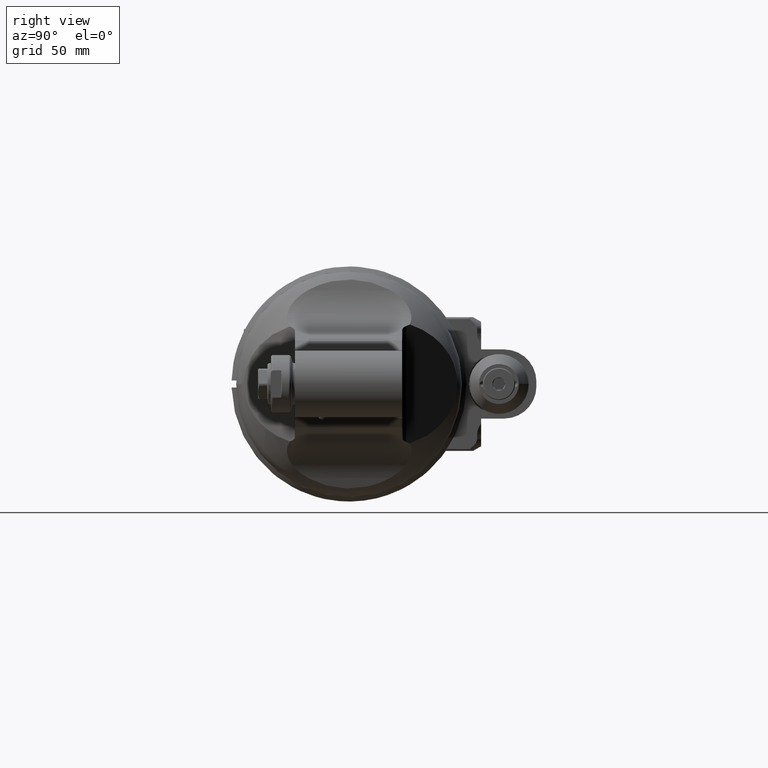
[diagram: clean part render]
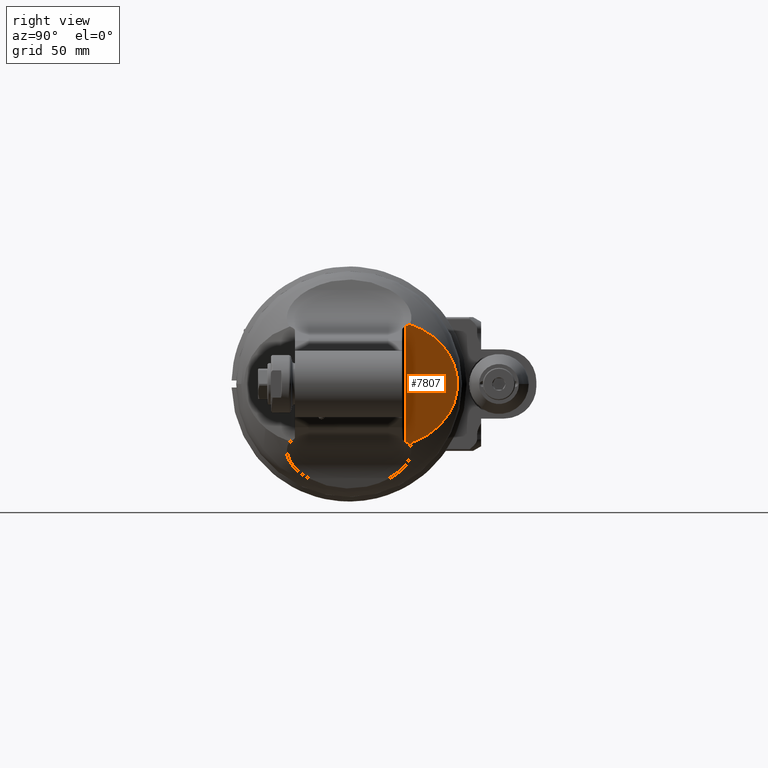
[diagram: same view with one face highlighted and labeled with its STEP entity id]
A machine part, right view. The second image highlights one B-rep face of the part: STEP entity #7807.
In plain terms, the highlighted planar face has unit normal (-0.8192, -0.5736, 0).
Its self-contained STEP definition (entity closure, byte-faithful):
#274=ELLIPSE('',#8353,3.10900759785883,1.83777729492474);
#275=ELLIPSE('',#8377,3.10900758758026,1.83777727992618);
#276=ELLIPSE('',#8379,1.51625797424774,1.08251624101512);
#277=ELLIPSE('',#8380,1.51625797424774,1.08251624101512);
#291=B_SPLINE_CURVE_WITH_KNOTS('',3,(#11824,#11825,#11826,#11827,#11828,
#11829,#11830,#11831,#11832,#11833),.UNSPECIFIED.,.F.,.F.,(4,2,2,2,4),(-2.83909399640529,
-2.74950468456945,-2.43831440791192,-2.1271241312544,-2.03753481942691),
 .UNSPECIFIED.);
#1018=FACE_OUTER_BOUND('',#1508,.T.);
#1508=EDGE_LOOP('',(#5312,#5313,#5314,#5315,#5316,#5317));
#2082=LINE('',#11646,#2654);
#2654=VECTOR('',#9281,1.97803134760669);
#3233=VERTEX_POINT('',#11636);
#3234=VERTEX_POINT('',#11645);
#3236=VERTEX_POINT('',#11658);
#3266=VERTEX_POINT('',#11801);
#3267=VERTEX_POINT('',#11820);
#3268=VERTEX_POINT('',#11822);
#4029=EDGE_CURVE('',#3233,#3234,#2082,.T.);
#4032=EDGE_CURVE('',#3234,#3236,#274,.T.);
#4075=EDGE_CURVE('',#3266,#3233,#275,.T.);
#4076=EDGE_CURVE('',#3267,#3236,#276,.T.);
#4077=EDGE_CURVE('',#3266,#3268,#277,.T.);
#4078=EDGE_CURVE('',#3267,#3268,#291,.F.);
#5312=ORIENTED_EDGE('',*,*,#4076,.T.);
#5313=ORIENTED_EDGE('',*,*,#4032,.F.);
#5314=ORIENTED_EDGE('',*,*,#4029,.F.);
#5315=ORIENTED_EDGE('',*,*,#4075,.F.);
#5316=ORIENTED_EDGE('',*,*,#4077,.T.);
#5317=ORIENTED_EDGE('',*,*,#4078,.F.);
#7576=PLANE('',#8378);
#7807=ADVANCED_FACE('',(#1018),#7576,.F.);
#8353=AXIS2_PLACEMENT_3D('',#11659,#9285,#9286);
#8377=AXIS2_PLACEMENT_3D('',#11818,#9358,#9359);
#8378=AXIS2_PLACEMENT_3D('',#11819,#9360,#9361);
#8379=AXIS2_PLACEMENT_3D('',#11821,#9362,#9363);
#8380=AXIS2_PLACEMENT_3D('',#11823,#9364,#9365);
#9281=DIRECTION('',(-3.974016236092E-14,5.656962613655E-14,1.));
#9285=DIRECTION('center_axis',(0.81918684404937,0.573526708363153,0.000171261674334055));
#9286=DIRECTION('ref_axis',(0.540125021552704,-0.771578478112781,0.336052991663303));
#9358=DIRECTION('center_axis',(0.819186844003443,0.573526708428818,-0.000171261448242765));
#9359=DIRECTION('ref_axis',(0.540125022672275,-0.771578479446381,-0.336052986801911));
#9360=DIRECTION('center_axis',(-0.819152044289016,-0.573576436351011,0.));
#9361=DIRECTION('ref_axis',(0.573576436351011,-0.819152044289016,0.));
#9362=DIRECTION('center_axis',(0.819152044289016,0.573576436351011,0.));
#9363=DIRECTION('ref_axis',(-0.573576436351011,0.819152044289016,4.61236213267087E-16));
#9364=DIRECTION('center_axis',(0.819152044289016,0.573576436351011,0.));
#9365=DIRECTION('ref_axis',(-0.573576436351011,0.819152044289016,4.61236213267087E-16));
#11636=CARTESIAN_POINT('',(2.02580931005354,0.972665128133858,-0.989015673803543));
#11645=CARTESIAN_POINT('',(2.02580931005354,0.972665128133858,0.989015673803543));
#11646=CARTESIAN_POINT('',(2.02580931005354,0.972665128133858,-0.989015673803543));
#11658=CARTESIAN_POINT('',(1.98136360548228,1.03614017252559,1.01647766207402));
#11659=CARTESIAN_POINT('Origin',(3.15402978535757,-0.639369005477139,2.86485779708752));
#11801=CARTESIAN_POINT('',(1.98136360548189,1.03614017252598,-1.01647766207402));
#11818=CARTESIAN_POINT('Origin',(3.15402978511172,-0.639369004105824,-2.86485777776351));
#11819=CARTESIAN_POINT('Origin',(1.42123353423858,1.83608881728819,2.31496072440945));
#11820=CARTESIAN_POINT('',(1.42123353423858,1.83608881728819,0.167287104098858));
#11821=CARTESIAN_POINT('Origin',(2.2804760117696,0.608963385694004,0.));
#11822=CARTESIAN_POINT('',(1.42123353423858,1.83608881728819,-0.167287104101693));
#11823=CARTESIAN_POINT('Origin',(2.2804760117696,0.608963385694004,0.));
#11824=CARTESIAN_POINT('Ctrl Pts',(1.42123353423875,1.83608881728795,-0.16728710410163));
#11825=CARTESIAN_POINT('Ctrl Pts',(1.41966917898365,1.83832294812736,-0.154838269294027));
#11826=CARTESIAN_POINT('Ctrl Pts',(1.41828356640287,1.84030180797271,-0.142227059166263));
#11827=CARTESIAN_POINT('Ctrl Pts',(1.4129121361972,1.8479730053143,-0.0855570739164365));
#11828=CARTESIAN_POINT('Ctrl Pts',(1.41105529573517,1.85062484831898,-0.0408386189839275));
#11829=CARTESIAN_POINT('Ctrl Pts',(1.41105529573517,1.85062484831898,0.0408386189839275));
#11830=CARTESIAN_POINT('Ctrl Pts',(1.4129121361972,1.8479730053143,0.0855570739164365));
#11831=CARTESIAN_POINT('Ctrl Pts',(1.41828356640276,1.84030180797287,0.142227059165082));
#11832=CARTESIAN_POINT('Ctrl Pts',(1.41966917898339,1.83832294812772,0.154838269291675));
#11833=CARTESIAN_POINT('Ctrl Pts',(1.42123353423831,1.83608881728858,0.167287104098147));